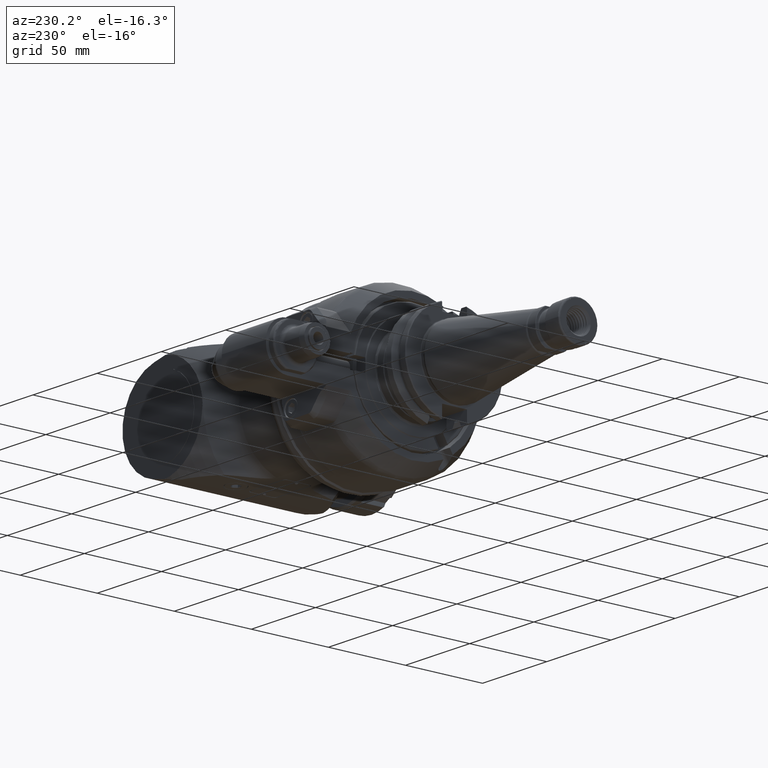
[diagram: clean part render]
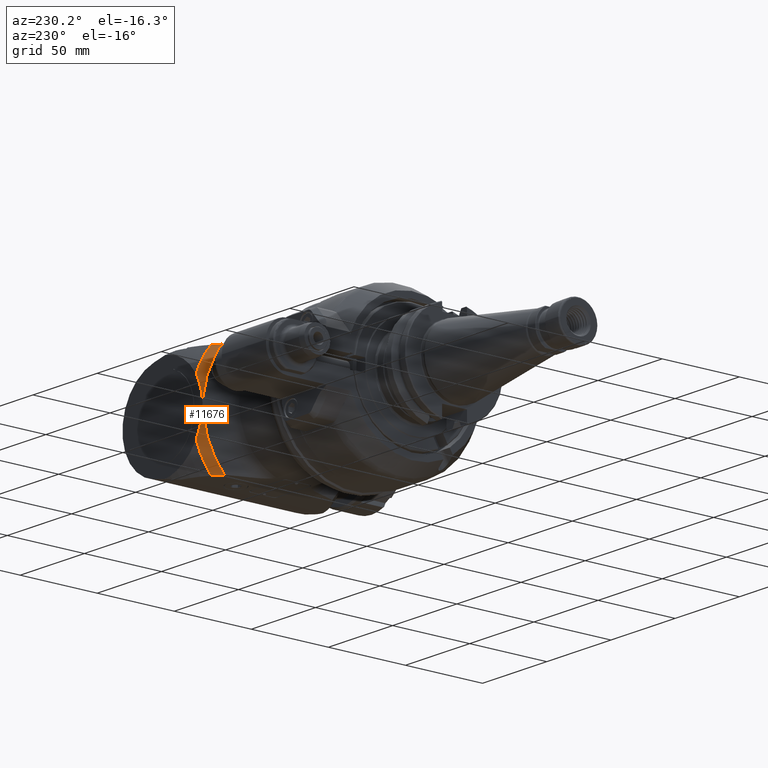
[diagram: same view with one face highlighted and labeled with its STEP entity id]
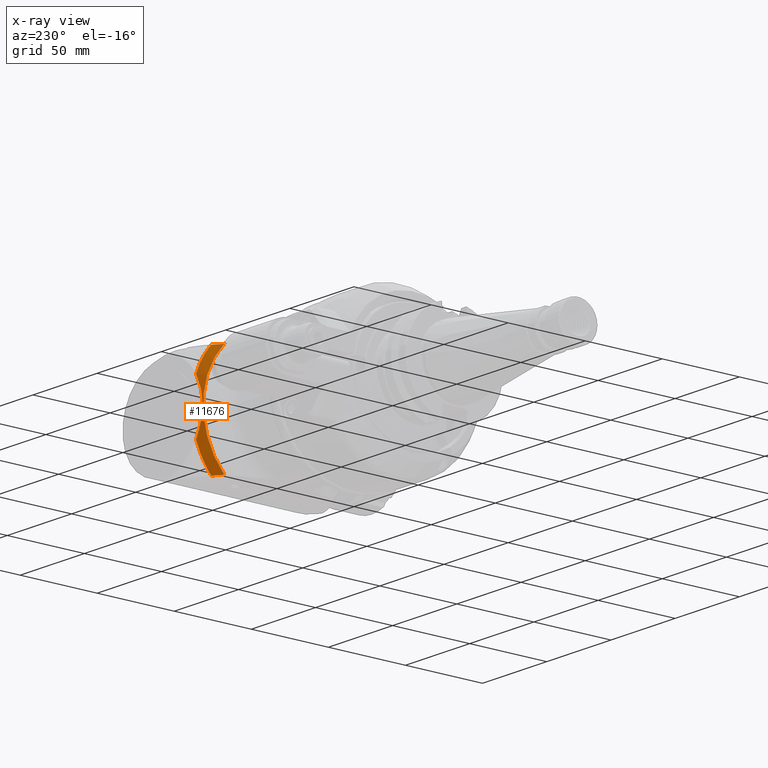
[diagram: x-ray of the same camera — body ghosted, the highlighted face saturated]
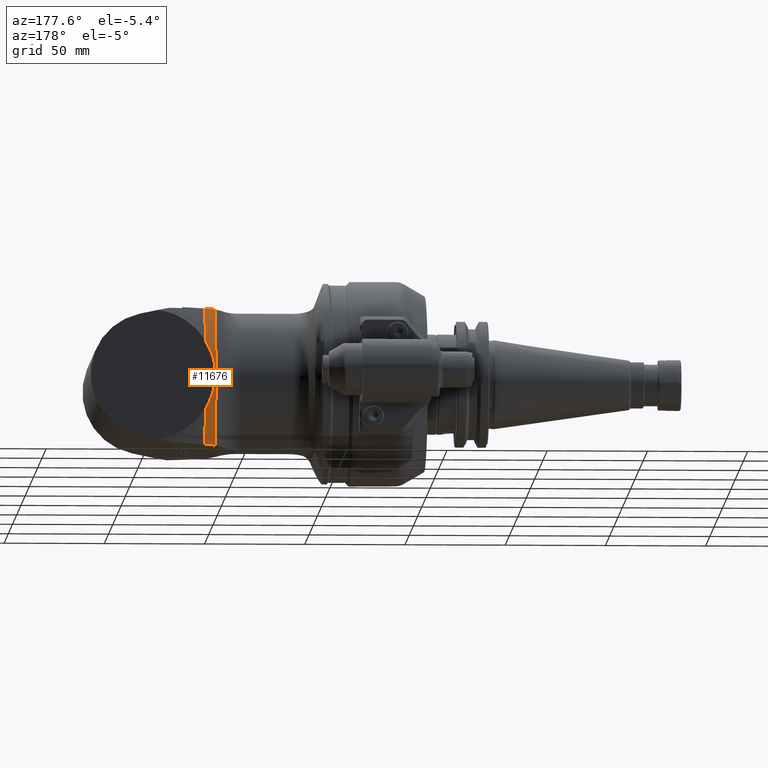
[diagram: same view with one face highlighted and labeled with its STEP entity id]
A machine part, auxiliary view. The second image highlights one B-rep face of the part: STEP entity #11676.
The next image is the same camera in x-ray: the body ghosted, the highlighted face saturated — about 2% of this face is hidden behind the body in this view.
A second angle (auxiliary view) of the same face is appended — the face is thin or edge-on in the first view.
In plain terms, the highlighted conical surface has half-angle 30 deg.
Its self-contained STEP definition (entity closure, byte-faithful):
#93=CONICAL_SURFACE('',#12426,50.36084388501,0.523598775598299);
#237=(
BOUNDED_CURVE()
B_SPLINE_CURVE(2,(#16624,#16625,#16626),.UNSPECIFIED.,.F.,.F.)
B_SPLINE_CURVE_WITH_KNOTS((3,3),(1.03386127366924,1.46542381090931),
 .UNSPECIFIED.)
CURVE()
GEOMETRIC_REPRESENTATION_ITEM()
RATIONAL_B_SPLINE_CURVE((1.11056846276984,1.13179769710168,1.15148416291538))
REPRESENTATION_ITEM('')
);
#265=(
BOUNDED_CURVE()
B_SPLINE_CURVE(2,(#16849,#16850,#16851),.UNSPECIFIED.,.F.,.F.)
B_SPLINE_CURVE_WITH_KNOTS((3,3),(11.7660287057255,12.1804611856225),
 .UNSPECIFIED.)
CURVE()
GEOMETRIC_REPRESENTATION_ITEM()
RATIONAL_B_SPLINE_CURVE((1.12253550208667,1.10334395998691,1.08264843503662))
REPRESENTATION_ITEM('')
);
#433=B_SPLINE_CURVE_WITH_KNOTS('',3,(#16992,#16993,#16994,#16995,#16996),
 .UNSPECIFIED.,.F.,.F.,(4,1,4),(0.,0.5003246250864,1.),.UNSPECIFIED.);
#434=B_SPLINE_CURVE_WITH_KNOTS('',3,(#17001,#17002,#17003,#17004,#17005,
#17006,#17007,#17008,#17009,#17010,#17011,#17012,#17013,#17014,#17015,#17016,
#17017,#17018,#17019,#17020,#17021,#17022,#17023,#17024,#17025,#17026,#17027,
#17028,#17029,#17030,#17031,#17032,#17033,#17034,#17035,#17036,#17037,#17038,
#17039,#17040,#17041,#17042,#17043),.UNSPECIFIED.,.F.,.F.,(4,1,1,1,1,1,
1,1,1,1,1,1,1,1,1,1,1,1,1,1,1,1,1,1,1,1,1,1,1,1,1,1,1,1,1,1,1,1,1,1,4),
(1.91670449904028E-9,0.001589553303491,0.003179047751397,0.003973794975351,
0.004768542199304,0.005563289423257,0.005960663035234,0.006358036647211,
0.006817620944156,0.007277205241101,0.008196373834991,0.009115542428882,
0.01003471102277,0.01187304821055,0.01371138539833,0.02718967805467,0.04066797071101,
0.05414626336735,0.06762455602369,0.08110308886937,0.09458162171505,0.1215386874064,
0.1484953819854,0.1754520765643,0.2024092551703,0.2293664337763,0.2775899441401,
0.3258134545039,0.4222613086703,0.470473646968,0.5186859852657,0.5668959560708,
0.6151065687518,0.6632219989264,0.7113379613195,0.7594531415211,0.8075687216845,
0.8556764979444,0.9037845224649,0.95189221914,1.),.UNSPECIFIED.);
#435=B_SPLINE_CURVE_WITH_KNOTS('',3,(#17044,#17045,#17046,#17047,#17048,
#17049,#17050,#17051,#17052,#17053,#17054,#17055,#17056,#17057,#17058,#17059,
#17060,#17061,#17062,#17063,#17064,#17065,#17066,#17067,#17068),
 .UNSPECIFIED.,.F.,.F.,(4,1,1,1,1,1,1,1,1,1,1,1,1,1,1,1,1,1,1,1,1,1,4),
(0.,0.04841559726253,0.09683110980424,0.145246952288,0.19366254492,0.2420859913843,
0.2905090353212,0.3389328664457,0.3873561619355,0.4358752489412,0.4843936899489,
0.5329145135583,0.5814353371677,0.6785003101045,0.7755644441063,0.8298237706051,
0.8840821228277,0.9112116724125,0.9383412219972,0.9654702881166,0.992599354236,
0.996299677118,1.),.UNSPECIFIED.);
#2762=FACE_OUTER_BOUND('',#3418,.T.);
#3418=EDGE_LOOP('',(#7899,#7900,#7901,#7902,#7903,#7904,#7905,#7906));
#4146=CIRCLE('',#12425,48.83493642406);
#4147=CIRCLE('',#12427,51.88675134595);
#4148=CIRCLE('',#12428,51.88675134595);
#4612=VERTEX_POINT('',#16619);
#4613=VERTEX_POINT('',#16623);
#4667=VERTEX_POINT('',#16844);
#4668=VERTEX_POINT('',#16848);
#4688=VERTEX_POINT('',#16990);
#4689=VERTEX_POINT('',#16991);
#4690=VERTEX_POINT('',#16998);
#4691=VERTEX_POINT('',#17000);
#5898=EDGE_CURVE('',#4613,#4612,#237,.T.);
#5965=EDGE_CURVE('',#4668,#4667,#265,.T.);
#5993=EDGE_CURVE('',#4668,#4612,#4146,.T.);
#5994=EDGE_CURVE('',#4688,#4689,#433,.T.);
#5995=EDGE_CURVE('',#4613,#4689,#4147,.T.);
#5996=EDGE_CURVE('',#4690,#4667,#4148,.T.);
#5997=EDGE_CURVE('',#4690,#4691,#434,.T.);
#5998=EDGE_CURVE('',#4691,#4688,#435,.T.);
#7899=ORIENTED_EDGE('',*,*,#5994,.T.);
#7900=ORIENTED_EDGE('',*,*,#5995,.F.);
#7901=ORIENTED_EDGE('',*,*,#5898,.T.);
#7902=ORIENTED_EDGE('',*,*,#5993,.F.);
#7903=ORIENTED_EDGE('',*,*,#5965,.T.);
#7904=ORIENTED_EDGE('',*,*,#5996,.F.);
#7905=ORIENTED_EDGE('',*,*,#5997,.T.);
#7906=ORIENTED_EDGE('',*,*,#5998,.T.);
#11676=ADVANCED_FACE('',(#2762),#93,.T.);
#12425=AXIS2_PLACEMENT_3D('',#16988,#13621,#13622);
#12426=AXIS2_PLACEMENT_3D('',#16989,#13623,#13624);
#12427=AXIS2_PLACEMENT_3D('',#16997,#13625,#13626);
#12428=AXIS2_PLACEMENT_3D('',#16999,#13627,#13628);
#13621=DIRECTION('center_axis',(-1.,0.,0.));
#13622=DIRECTION('ref_axis',(0.,0.717825677790918,0.696222878325618));
#13623=DIRECTION('center_axis',(1.,0.,0.));
#13624=DIRECTION('ref_axis',(0.,1.,4.69567684027465E-12));
#13625=DIRECTION('center_axis',(1.,0.,0.));
#13626=DIRECTION('ref_axis',(0.,0.755392334798538,-0.655272783295333));
#13627=DIRECTION('center_axis',(1.,0.,0.));
#13628=DIRECTION('ref_axis',(0.,0.944049445837478,0.329803947541492));
#16619=CARTESIAN_POINT('',(246.4733509227,35.05497133849,-34.));
#16623=CARTESIAN_POINT('',(251.759249442685,39.1948334183895,-33.9999999944178));
#16624=CARTESIAN_POINT('Ctrl Pts',(251.759249444294,39.1948334162861,-34.));
#16625=CARTESIAN_POINT('Ctrl Pts',(248.96894026175,37.0621845397854,-34.));
#16626=CARTESIAN_POINT('Ctrl Pts',(246.473350922697,35.0549713384935,-34.));
#16844=CARTESIAN_POINT('',(251.759249442687,39.1948334183914,33.9999999944173));
#16848=CARTESIAN_POINT('',(246.473350922444,35.0549713383488,34.0000000000025));
#16849=CARTESIAN_POINT('Ctrl Pts',(246.473350921874,35.0549713378312,34.));
#16850=CARTESIAN_POINT('Ctrl Pts',(248.968940261291,37.062184539435,34.));
#16851=CARTESIAN_POINT('Ctrl Pts',(251.759249444296,39.1948334162878,34.));
#16988=CARTESIAN_POINT('Origin',(246.4733509227,0.,0.));
#16989=CARTESIAN_POINT('Origin',(249.1163001727,0.,0.));
#16990=CARTESIAN_POINT('',(251.698353613985,48.9818078445406,-17.0108851048865));
#16991=CARTESIAN_POINT('',(251.75924942705,48.9836588556868,-17.1124554207375));
#16992=CARTESIAN_POINT('Ctrl Pts',(251.6983536147,48.98180784337,-17.01088510448));
#16993=CARTESIAN_POINT('Ctrl Pts',(251.7077901747,48.98179924403,-17.02751678136));
#16994=CARTESIAN_POINT('Ctrl Pts',(251.7280760253,48.98243052272,-17.06135448686));
#16995=CARTESIAN_POINT('Ctrl Pts',(251.7490989005,48.98336129571,-17.09553779882));
#16996=CARTESIAN_POINT('Ctrl Pts',(251.7592494284,48.98365885619,-17.11245542167));
#16997=CARTESIAN_POINT('Origin',(251.7592494227,0.,0.));
#16998=CARTESIAN_POINT('',(251.759249529814,48.983661996995,17.1124466078449));
#16999=CARTESIAN_POINT('Origin',(251.7592494227,0.,0.));
#17000=CARTESIAN_POINT('',(246.7360518597,48.98660687987,5.444697760611E-11));
#17001=CARTESIAN_POINT('Ctrl Pts',(251.759249552936,48.9836620152084,17.1124465936643));
#17002=CARTESIAN_POINT('Ctrl Pts',(251.754173097547,48.9835150492601,17.1039804816753));
#17003=CARTESIAN_POINT('Ctrl Pts',(251.743845685222,48.9831502031707,17.086934437331));
#17004=CARTESIAN_POINT('Ctrl Pts',(251.7308290174,48.98261265076,17.06564438861));
#17005=CARTESIAN_POINT('Ctrl Pts',(251.7205515368,48.9822441044,17.04865773781));
#17006=CARTESIAN_POINT('Ctrl Pts',(251.7129603267,48.98201818605,17.03596973423));
#17007=CARTESIAN_POINT('Ctrl Pts',(251.7067751245,48.98189270813,17.02545644719));
#17008=CARTESIAN_POINT('Ctrl Pts',(251.7019320241,48.98183942223,17.01709092527));
#17009=CARTESIAN_POINT('Ctrl Pts',(251.6981834632,48.98183045567,17.0105209294));
#17010=CARTESIAN_POINT('Ctrl Pts',(251.6942863597,48.98183766372,17.00364054572));
#17011=CARTESIAN_POINT('Ctrl Pts',(251.6888320225,48.98184122818,16.99402600952));
#17012=CARTESIAN_POINT('Ctrl Pts',(251.6820219646,48.98184794757,16.98200833234));
#17013=CARTESIAN_POINT('Ctrl Pts',(251.6738525696,48.98185509187,16.96758354765));
#17014=CARTESIAN_POINT('Ctrl Pts',(251.6629671326,48.98186499339,16.94834731546));
#17015=CARTESIAN_POINT('Ctrl Pts',(251.6493720105,48.98187731701,16.92429536348));
#17016=CARTESIAN_POINT('Ctrl Pts',(251.5986846905,48.98192359503,16.83448362377));
#17017=CARTESIAN_POINT('Ctrl Pts',(251.5140158669,48.98200094735,16.68350158099));
#17018=CARTESIAN_POINT('Ctrl Pts',(251.3961515179,48.98210895725,16.47091290709));
#17019=CARTESIAN_POINT('Ctrl Pts',(251.2793324718,48.98221627846,16.25774690665));
#17020=CARTESIAN_POINT('Ctrl Pts',(251.1635723259,48.98232290755,16.04399834778));
#17021=CARTESIAN_POINT('Ctrl Pts',(251.0488876192,48.98242881875,15.82966742844));
#17022=CARTESIAN_POINT('Ctrl Pts',(250.8974320197,48.98256904717,15.54311792585));
#17023=CARTESIAN_POINT('Ctrl Pts',(250.7108833648,48.98274242974,15.18347061318));
#17024=CARTESIAN_POINT('Ctrl Pts',(250.4915909959,48.98294726668,14.74955319997));
#17025=CARTESIAN_POINT('Ctrl Pts',(250.2769978402,48.98314869931,14.31328491589));
#17026=CARTESIAN_POINT('Ctrl Pts',(250.0672406847,48.98334654213,13.87466393179));
#17027=CARTESIAN_POINT('Ctrl Pts',(249.8086066266,48.98359163631,13.31772108911));
#17028=CARTESIAN_POINT('Ctrl Pts',(249.5070261105,48.98387928902,12.63984721881));
#17029=CARTESIAN_POINT('Ctrl Pts',(249.0585769374,48.98431041312,11.57030209064));
#17030=CARTESIAN_POINT('Ctrl Pts',(248.6462925988,48.98471139279,10.48608025346));
#17031=CARTESIAN_POINT('Ctrl Pts',(248.2736543816,48.9850773614,9.38786548892));
#17032=CARTESIAN_POINT('Ctrl Pts',(248.0148968945,48.98533308011,8.557595206987));
#17033=CARTESIAN_POINT('Ctrl Pts',(247.777663309,48.98556888565,7.720840433863));
#17034=CARTESIAN_POINT('Ctrl Pts',(247.5629532113,48.98578343189,6.87862508748));
#17035=CARTESIAN_POINT('Ctrl Pts',(247.3715026824,48.98597565143,6.031376250022));
#17036=CARTESIAN_POINT('Ctrl Pts',(247.2040079723,48.98614451535,5.17963735275));
#17037=CARTESIAN_POINT('Ctrl Pts',(247.0610248761,48.98628924302,4.32342635599));
#17038=CARTESIAN_POINT('Ctrl Pts',(246.943166152,48.98640872699,3.463433662033));
#17039=CARTESIAN_POINT('Ctrl Pts',(246.8509445472,48.98650311701,2.600348084539));
#17040=CARTESIAN_POINT('Ctrl Pts',(246.7847655171,48.98656853411,1.734915056086));
#17041=CARTESIAN_POINT('Ctrl Pts',(246.7449495757,48.98661682613,0.8678644222442));
#17042=CARTESIAN_POINT('Ctrl Pts',(246.7360518597,48.98660687987,0.2892883095284));
#17043=CARTESIAN_POINT('Ctrl Pts',(246.7360518597,48.98660687987,5.444697760611E-11));
#17044=CARTESIAN_POINT('Ctrl Pts',(246.7360518597,48.98660687987,5.444697760611E-11));
#17045=CARTESIAN_POINT('Ctrl Pts',(246.7360518597,48.98660687987,-0.2892886217066));
#17046=CARTESIAN_POINT('Ctrl Pts',(246.744905313,48.98659126832,-0.8678653590124));
#17047=CARTESIAN_POINT('Ctrl Pts',(246.7847390574,48.98655319291,-1.734916927251));
#17048=CARTESIAN_POINT('Ctrl Pts',(246.8509133398,48.98648493979,-2.60035088516));
#17049=CARTESIAN_POINT('Ctrl Pts',(246.9431362491,48.9863911691,-3.463437384845));
#17050=CARTESIAN_POINT('Ctrl Pts',(247.0609946654,48.98627133738,-4.323430991408));
#17051=CARTESIAN_POINT('Ctrl Pts',(247.2039778948,48.98612648115,-5.179642889227));
#17052=CARTESIAN_POINT('Ctrl Pts',(247.371472629,48.98595739138,-6.031382673389));
#17053=CARTESIAN_POINT('Ctrl Pts',(247.5629232194,48.98576493498,-6.878632384704));
#17054=CARTESIAN_POINT('Ctrl Pts',(247.7776333781,48.98555011941,-7.720848582359));
#17055=CARTESIAN_POINT('Ctrl Pts',(248.0148670267,48.98531401963,-8.557604211434));
#17056=CARTESIAN_POINT('Ctrl Pts',(248.2736247473,48.98505798184,-9.387875722678));
#17057=CARTESIAN_POINT('Ctrl Pts',(248.6462626476,48.98469155776,-10.48609057603));
#17058=CARTESIAN_POINT('Ctrl Pts',(249.1616270375,48.98418970302,-11.84139111928));
#17059=CARTESIAN_POINT('Ctrl Pts',(249.7508209796,48.98362454112,-13.20356416531));
#17060=CARTESIAN_POINT('Ctrl Pts',(250.27454984,48.98312873554,-14.31447460084));
#17061=CARTESIAN_POINT('Ctrl Pts',(250.6362357997,48.98278957296,-15.03962872071));
#17062=CARTESIAN_POINT('Ctrl Pts',(250.9347122661,48.98251188771,-15.61506195846));
#17063=CARTESIAN_POINT('Ctrl Pts',(251.1630053283,48.98230032098,-16.04430518878));
#17064=CARTESIAN_POINT('Ctrl Pts',(251.395597066,48.98208685012,-16.47121100883));
#17065=CARTESIAN_POINT('Ctrl Pts',(251.5642219723,48.98193032425,-16.77360676038));
#17066=CARTESIAN_POINT('Ctrl Pts',(251.6656454497,48.98183971595,-16.95317376006));
#17067=CARTESIAN_POINT('Ctrl Pts',(251.6874460973,48.98181779818,-16.99166086348));
#17068=CARTESIAN_POINT('Ctrl Pts',(251.6983536147,48.98180784337,-17.01088510448));